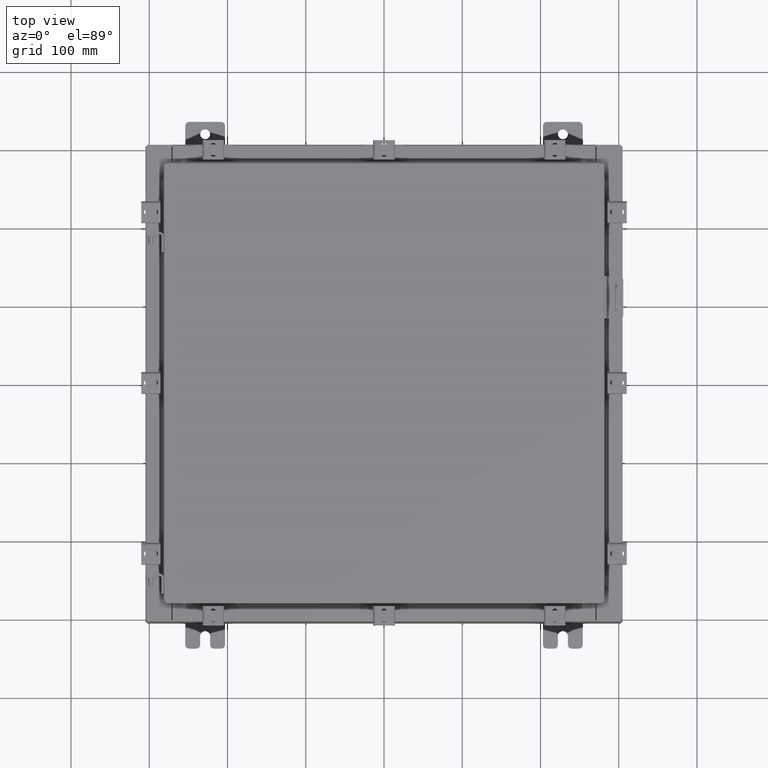
[diagram: clean part render]
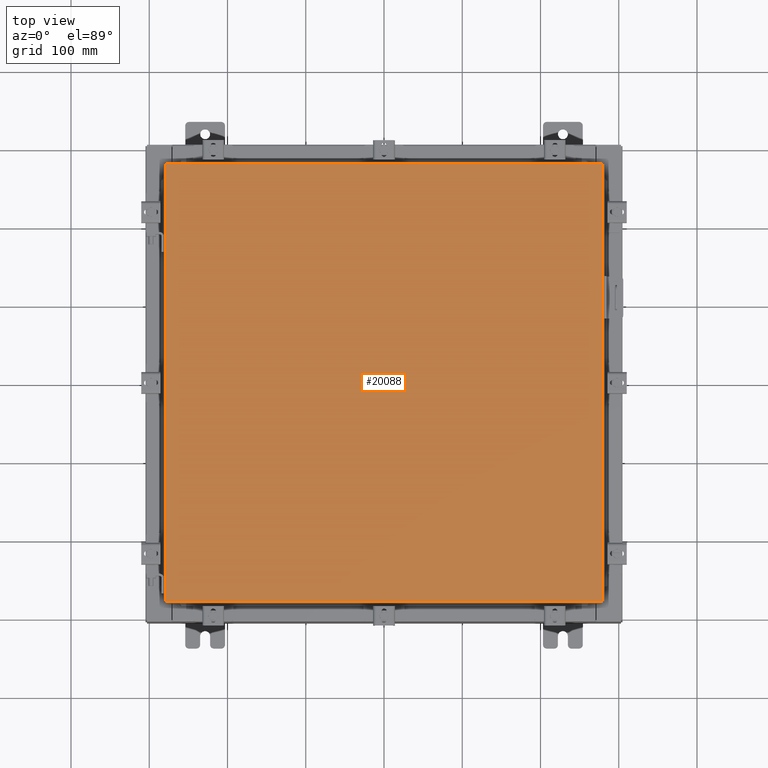
[diagram: same view with one face highlighted and labeled with its STEP entity id]
A machine part, top view. The second image highlights one B-rep face of the part: STEP entity #20088.
In plain terms, the highlighted planar face has unit normal (0, 0, -1).
Its self-contained STEP definition (entity closure, byte-faithful):
#201 = ORIENTED_EDGE ( 'NONE', *, *, #4790, .T. ) ;
#626 = CARTESIAN_POINT ( 'NONE',  ( 11.00629999999999400, 11.00629999999999600, 0.0000000000000000000 ) ) ;
#1673 = CARTESIAN_POINT ( 'NONE',  ( -11.00630000000000300, 11.00629999999999600, 0.0000000000000000000 ) ) ;
#2271 = CARTESIAN_POINT ( 'NONE',  ( -11.00630000000000300, 11.00629999999999600, 0.0000000000000000000 ) ) ;
#2314 = DIRECTION ( 'NONE',  ( 0.0000000000000000000, -1.000000000000000000, 0.0000000000000000000 ) ) ;
#2492 = CARTESIAN_POINT ( 'NONE',  ( 11.00629999999999400, -11.00630000000000100, 0.0000000000000000000 ) ) ;
#3121 = DIRECTION ( 'NONE',  ( -1.000000000000000000, -0.0000000000000000000, -0.0000000000000000000 ) ) ;
#3472 = DIRECTION ( 'NONE',  ( 1.000000000000000000, -0.0000000000000000000, -0.0000000000000000000 ) ) ;
#3558 = CARTESIAN_POINT ( 'NONE',  ( -11.00630000000000300, -11.00630000000000100, 0.0000000000000000000 ) ) ;
#3780 = EDGE_CURVE ( 'NONE', #3838, #8661, #7467, .T. ) ;
#3838 = VERTEX_POINT ( 'NONE', #1673 ) ;
#4160 = LINE ( 'NONE', #8152, #17278 ) ;
#4790 = EDGE_CURVE ( 'NONE', #8661, #15426, #12642, .T. ) ;
#5066 = EDGE_CURVE ( 'NONE', #13800, #3838, #4160, .T. ) ;
#7228 = EDGE_LOOP ( 'NONE', ( #201, #18023, #15246, #7624 ) ) ;
#7303 = FACE_OUTER_BOUND ( 'NONE', #7228, .T. ) ;
#7353 = VECTOR ( 'NONE', #9019, 39.37007874015748100 ) ;
#7467 = LINE ( 'NONE', #2271, #11592 ) ;
#7624 = ORIENTED_EDGE ( 'NONE', *, *, #3780, .T. ) ;
#7889 = CARTESIAN_POINT ( 'NONE',  ( 0.0000000000000000000, 0.0000000000000000000, 0.0000000000000000000 ) ) ;
#8152 = CARTESIAN_POINT ( 'NONE',  ( 11.00629999999999400, 11.00629999999999600, 0.0000000000000000000 ) ) ;
#8421 = AXIS2_PLACEMENT_3D ( 'NONE', #7889, #20069, #9671 ) ;
#8661 = VERTEX_POINT ( 'NONE', #21081 ) ;
#9019 = DIRECTION ( 'NONE',  ( 0.0000000000000000000, 1.000000000000000000, 0.0000000000000000000 ) ) ;
#9671 = DIRECTION ( 'NONE',  ( -1.000000000000000000, 0.0000000000000000000, -0.0000000000000000000 ) ) ;
#9948 = EDGE_CURVE ( 'NONE', #15426, #13800, #12030, .T. ) ;
#11592 = VECTOR ( 'NONE', #2314, 39.37007874015748100 ) ;
#12030 = LINE ( 'NONE', #21174, #7353 ) ;
#12642 = LINE ( 'NONE', #3558, #18345 ) ;
#13800 = VERTEX_POINT ( 'NONE', #626 ) ;
#15246 = ORIENTED_EDGE ( 'NONE', *, *, #5066, .T. ) ;
#15426 = VERTEX_POINT ( 'NONE', #2492 ) ;
#17278 = VECTOR ( 'NONE', #3121, 39.37007874015748100 ) ;
#18023 = ORIENTED_EDGE ( 'NONE', *, *, #9948, .T. ) ;
#18336 = PLANE ( 'NONE',  #8421 ) ;
#18345 = VECTOR ( 'NONE', #3472, 39.37007874015748100 ) ;
#20069 = DIRECTION ( 'NONE',  ( 0.0000000000000000000, 0.0000000000000000000, -1.000000000000000000 ) ) ;
#20088 = ADVANCED_FACE ( 'NONE', ( #7303 ), #18336, .F. ) ;
#21081 = CARTESIAN_POINT ( 'NONE',  ( -11.00630000000000300, -11.00630000000000100, 0.0000000000000000000 ) ) ;
#21174 = CARTESIAN_POINT ( 'NONE',  ( 11.00629999999999400, -11.00630000000000100, 0.0000000000000000000 ) ) ;